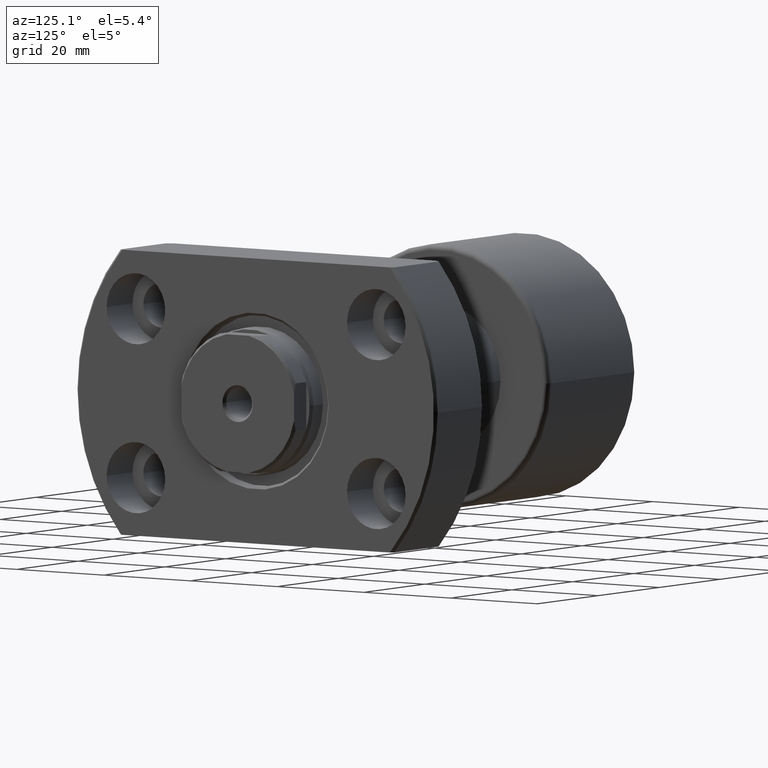
[diagram: clean part render]
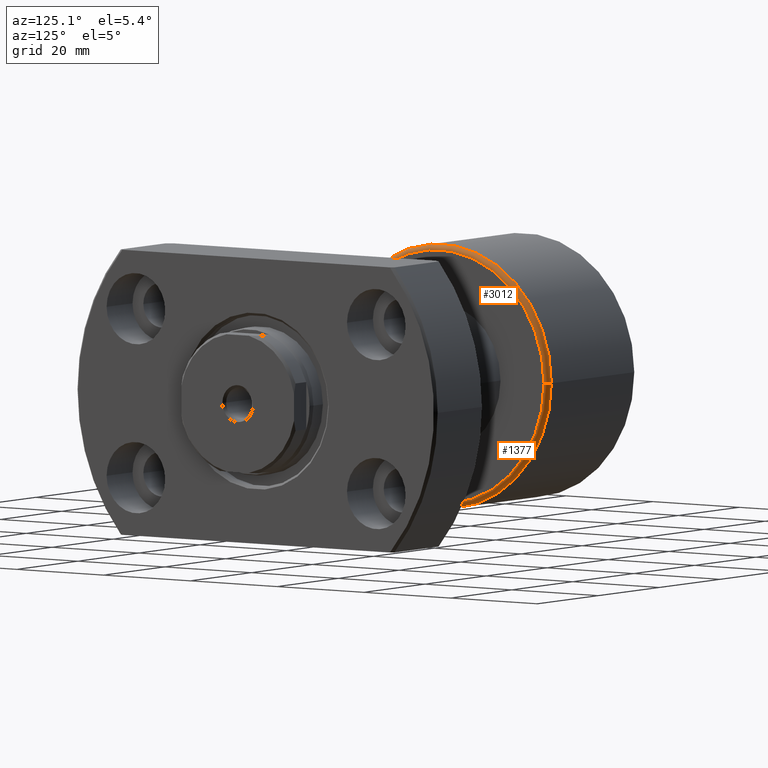
[diagram: same view with one multi-face feature highlighted, each face labeled with its STEP entity id]
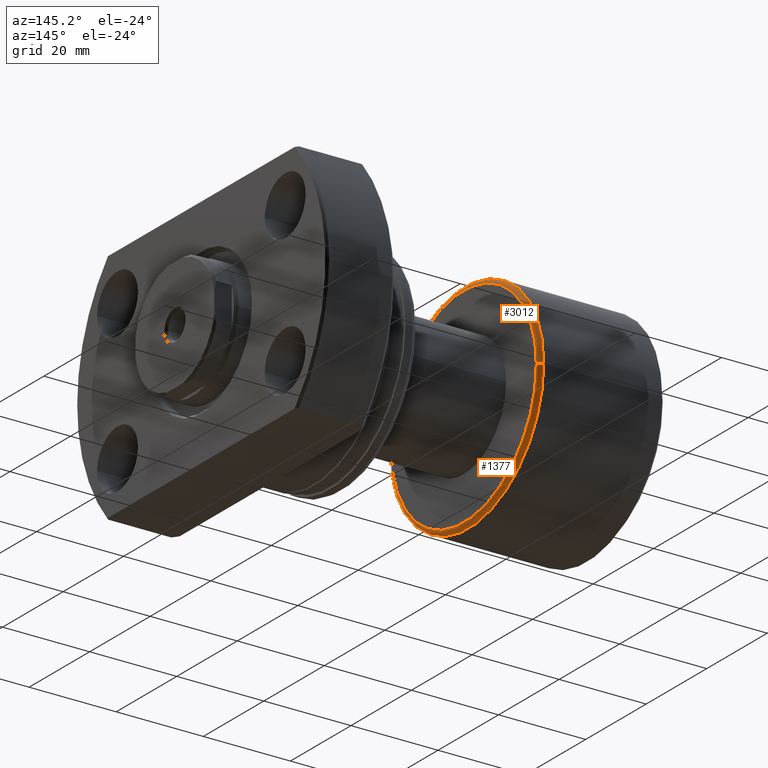
[diagram: same view with one multi-face feature highlighted, each face labeled with its STEP entity id]
A machine part, auxiliary view. The highlighted faces form ONE feature: a constant-radius fillet chain: 2 tangent blend faces with common blend radius 1 mm. The faces share edges in the B-rep.
A second angle (auxiliary view) of the same feature is appended — it is thin or edge-on in the first view.
Their STEP definitions:
[1] entity #3012 (Torus):
#175 = VERTEX_POINT ( 'NONE', #2298 ) ;
#232 = FACE_OUTER_BOUND ( 'NONE', #2917, .T. ) ;
#248 = DIRECTION ( 'NONE',  ( 0.000000000000000000, -1.000000000000000000, 0.000000000000000000 ) ) ;
#408 = VERTEX_POINT ( 'NONE', #1871 ) ;
#495 = DIRECTION ( 'NONE',  ( -1.000000000000000000, 0.000000000000000000, 0.000000000000000000 ) ) ;
#545 = DIRECTION ( 'NONE',  ( -1.000000000000000000, -1.069542322069065801E-17, -0.000000000000000000 ) ) ;
#603 = CIRCLE ( 'NONE', #3053, 1.000000000000000888 ) ;
#720 = DIRECTION ( 'NONE',  ( 0.000000000000000000, -1.000000000000000000, -1.224646799147353454E-16 ) ) ;
#757 = AXIS2_PLACEMENT_3D ( 'NONE', #2031, #1484, #720 ) ;
#960 = CIRCLE ( 'NONE', #2996, 25.00000000000000000 ) ;
#1035 = DIRECTION ( 'NONE',  ( 0.000000000000000000, -1.000000000000000000, 0.000000000000000000 ) ) ;
#1066 = ORIENTED_EDGE ( 'NONE', *, *, #1209, .T. ) ;
#1209 = EDGE_CURVE ( 'NONE', #408, #175, #3101, .T. ) ;
#1386 = DIRECTION ( 'NONE',  ( -1.000000000000000000, -1.069542322069065801E-17, -0.000000000000000000 ) ) ;
#1401 = EDGE_CURVE ( 'NONE', #2388, #1480, #603, .T. ) ;
#1440 = AXIS2_PLACEMENT_3D ( 'NONE', #1557, #545, #1035 ) ;
#1465 = EDGE_CURVE ( 'NONE', #1480, #175, #960, .T. ) ;
#1479 = DIRECTION ( 'NONE',  ( 0.000000000000000000, 0.000000000000000000, -1.000000000000000000 ) ) ;
#1480 = VERTEX_POINT ( 'NONE', #2374 ) ;
#1484 = DIRECTION ( 'NONE',  ( 1.309811581274509052E-33, -1.224646799147353207E-16, 1.000000000000000000 ) ) ;
#1514 = CARTESIAN_POINT ( 'NONE',  ( 28.69999999999999574, 0.000000000000000000, 0.000000000000000000 ) ) ;
#1531 = EDGE_CURVE ( 'NONE', #2388, #408, #1998, .T. ) ;
#1557 = CARTESIAN_POINT ( 'NONE',  ( 29.69999999999999574, 3.176540696545125501E-16, 0.000000000000000000 ) ) ;
#1859 = AXIS2_PLACEMENT_3D ( 'NONE', #1514, #3207, #2980 ) ;
#1871 = CARTESIAN_POINT ( 'NONE',  ( 29.69999999999999574, 24.00000000000000000, 3.000384657911015469E-15 ) ) ;
#1922 = CARTESIAN_POINT ( 'NONE',  ( 29.69999999999999574, -24.00000000000000000, 0.000000000000000000 ) ) ;
#1998 = CIRCLE ( 'NONE', #1440, 24.00000000000000000 ) ;
#2031 = CARTESIAN_POINT ( 'NONE',  ( 28.69999999999999574, 24.00000000000000000, 2.939152317953647894E-15 ) ) ;
#2056 = ORIENTED_EDGE ( 'NONE', *, *, #1465, .F. ) ;
#2204 = CARTESIAN_POINT ( 'NONE',  ( 28.69999999999999574, -24.00000000000000000, 0.000000000000000000 ) ) ;
#2298 = CARTESIAN_POINT ( 'NONE',  ( 28.69999999999999574, 25.00000000000000000, 3.061616997868383043E-15 ) ) ;
#2374 = CARTESIAN_POINT ( 'NONE',  ( 28.69999999999999574, -25.00000000000000000, 0.000000000000000000 ) ) ;
#2388 = VERTEX_POINT ( 'NONE', #1922 ) ;
#2628 = ORIENTED_EDGE ( 'NONE', *, *, #1531, .T. ) ;
#2756 = TOROIDAL_SURFACE ( 'NONE', #1859, 24.00000000000000000, 1.000000000000000888 ) ;
#2837 = ORIENTED_EDGE ( 'NONE', *, *, #1401, .F. ) ;
#2917 = EDGE_LOOP ( 'NONE', ( #2628, #1066, #2056, #2837 ) ) ;
#2978 = CARTESIAN_POINT ( 'NONE',  ( 28.69999999999999574, 3.069586464338218566E-16, 0.000000000000000000 ) ) ;
#2980 = DIRECTION ( 'NONE',  ( 1.069542322069065955E-17, -1.000000000000000000, 0.000000000000000000 ) ) ;
#2996 = AXIS2_PLACEMENT_3D ( 'NONE', #2978, #1386, #248 ) ;
#3012 = ADVANCED_FACE ( 'NONE', ( #232 ), #2756, .T. ) ;
#3053 = AXIS2_PLACEMENT_3D ( 'NONE', #2204, #1479, #495 ) ;
#3101 = CIRCLE ( 'NONE', #757, 1.000000000000000888 ) ;
#3207 = DIRECTION ( 'NONE',  ( -1.000000000000000000, -1.069542322069065801E-17, -0.000000000000000000 ) ) ;
[2] entity #1377 (Torus):
#20 = EDGE_CURVE ( 'NONE', #175, #1480, #534, .T. ) ;
#175 = VERTEX_POINT ( 'NONE', #2298 ) ;
#285 = EDGE_LOOP ( 'NONE', ( #2193, #1888, #428, #1662 ) ) ;
#408 = VERTEX_POINT ( 'NONE', #1871 ) ;
#428 = ORIENTED_EDGE ( 'NONE', *, *, #1401, .T. ) ;
#468 = DIRECTION ( 'NONE',  ( -1.000000000000000000, -1.069542322069065801E-17, -0.000000000000000000 ) ) ;
#495 = DIRECTION ( 'NONE',  ( -1.000000000000000000, 0.000000000000000000, 0.000000000000000000 ) ) ;
#534 = CIRCLE ( 'NONE', #1369, 25.00000000000000000 ) ;
#603 = CIRCLE ( 'NONE', #3053, 1.000000000000000888 ) ;
#720 = DIRECTION ( 'NONE',  ( 0.000000000000000000, -1.000000000000000000, -1.224646799147353454E-16 ) ) ;
#757 = AXIS2_PLACEMENT_3D ( 'NONE', #2031, #1484, #720 ) ;
#1209 = EDGE_CURVE ( 'NONE', #408, #175, #3101, .T. ) ;
#1215 = DIRECTION ( 'NONE',  ( 0.000000000000000000, -1.000000000000000000, 0.000000000000000000 ) ) ;
#1286 = DIRECTION ( 'NONE',  ( 0.000000000000000000, -1.000000000000000000, 0.000000000000000000 ) ) ;
#1369 = AXIS2_PLACEMENT_3D ( 'NONE', #2929, #1713, #1215 ) ;
#1377 = ADVANCED_FACE ( 'NONE', ( #2606 ), #1950, .T. ) ;
#1401 = EDGE_CURVE ( 'NONE', #2388, #1480, #603, .T. ) ;
#1479 = DIRECTION ( 'NONE',  ( 0.000000000000000000, 0.000000000000000000, -1.000000000000000000 ) ) ;
#1480 = VERTEX_POINT ( 'NONE', #2374 ) ;
#1484 = DIRECTION ( 'NONE',  ( 1.309811581274509052E-33, -1.224646799147353207E-16, 1.000000000000000000 ) ) ;
#1527 = CARTESIAN_POINT ( 'NONE',  ( 29.69999999999999574, 3.176540696545125501E-16, 0.000000000000000000 ) ) ;
#1662 = ORIENTED_EDGE ( 'NONE', *, *, #20, .F. ) ;
#1713 = DIRECTION ( 'NONE',  ( -1.000000000000000000, -1.069542322069065801E-17, -0.000000000000000000 ) ) ;
#1833 = DIRECTION ( 'NONE',  ( 1.069542322069065955E-17, -1.000000000000000000, 0.000000000000000000 ) ) ;
#1871 = CARTESIAN_POINT ( 'NONE',  ( 29.69999999999999574, 24.00000000000000000, 3.000384657911015469E-15 ) ) ;
#1888 = ORIENTED_EDGE ( 'NONE', *, *, #2986, .T. ) ;
#1922 = CARTESIAN_POINT ( 'NONE',  ( 29.69999999999999574, -24.00000000000000000, 0.000000000000000000 ) ) ;
#1950 = TOROIDAL_SURFACE ( 'NONE', #2740, 24.00000000000000000, 1.000000000000000888 ) ;
#2031 = CARTESIAN_POINT ( 'NONE',  ( 28.69999999999999574, 24.00000000000000000, 2.939152317953647894E-15 ) ) ;
#2169 = CIRCLE ( 'NONE', #2273, 24.00000000000000000 ) ;
#2193 = ORIENTED_EDGE ( 'NONE', *, *, #1209, .F. ) ;
#2204 = CARTESIAN_POINT ( 'NONE',  ( 28.69999999999999574, -24.00000000000000000, 0.000000000000000000 ) ) ;
#2273 = AXIS2_PLACEMENT_3D ( 'NONE', #1527, #468, #1286 ) ;
#2298 = CARTESIAN_POINT ( 'NONE',  ( 28.69999999999999574, 25.00000000000000000, 3.061616997868383043E-15 ) ) ;
#2374 = CARTESIAN_POINT ( 'NONE',  ( 28.69999999999999574, -25.00000000000000000, 0.000000000000000000 ) ) ;
#2388 = VERTEX_POINT ( 'NONE', #1922 ) ;
#2559 = DIRECTION ( 'NONE',  ( -1.000000000000000000, -1.069542322069065801E-17, -0.000000000000000000 ) ) ;
#2606 = FACE_OUTER_BOUND ( 'NONE', #285, .T. ) ;
#2740 = AXIS2_PLACEMENT_3D ( 'NONE', #2860, #2559, #1833 ) ;
#2860 = CARTESIAN_POINT ( 'NONE',  ( 28.69999999999999574, 0.000000000000000000, 0.000000000000000000 ) ) ;
#2929 = CARTESIAN_POINT ( 'NONE',  ( 28.69999999999999574, 3.069586464338218566E-16, 0.000000000000000000 ) ) ;
#2986 = EDGE_CURVE ( 'NONE', #408, #2388, #2169, .T. ) ;
#3053 = AXIS2_PLACEMENT_3D ( 'NONE', #2204, #1479, #495 ) ;
#3101 = CIRCLE ( 'NONE', #757, 1.000000000000000888 ) ;